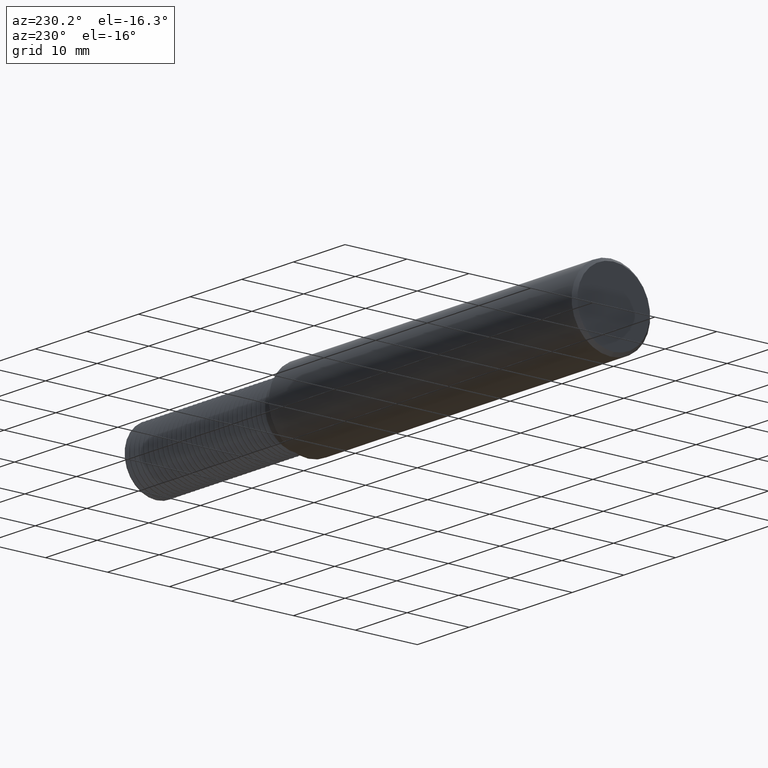
[diagram: clean part render]
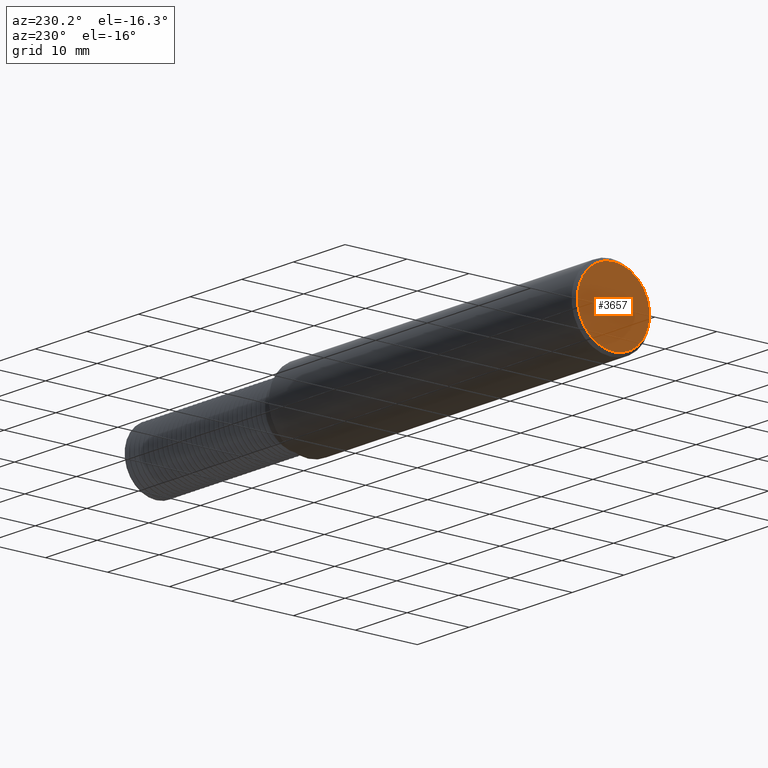
[diagram: same view with one face highlighted and labeled with its STEP entity id]
A machine part, auxiliary view. The second image highlights one B-rep face of the part: STEP entity #3657.
In plain terms, the highlighted planar face has unit normal (1, 0, 0).
Its self-contained STEP definition (entity closure, byte-faithful):
#43 = CARTESIAN_POINT ( 'NONE',  ( 0.000000000000000000, 2.937315347754928730E-17, 0.2298500000000002763 ) ) ;
#396 = VERTEX_POINT ( 'NONE', #2644 ) ;
#983 = CIRCLE ( 'NONE', #5753, 0.2298500000000002763 ) ;
#995 = ORIENTED_EDGE ( 'NONE', *, *, #2078, .T. ) ;
#1081 = DIRECTION ( 'NONE',  ( 0.000000000000000000, 0.000000000000000000, -1.000000000000000000 ) ) ;
#1115 = DIRECTION ( 'NONE',  ( 1.000000000000000000, 0.000000000000000000, 0.000000000000000000 ) ) ;
#1161 = EDGE_LOOP ( 'NONE', ( #1759, #995 ) ) ;
#1525 = VERTEX_POINT ( 'NONE', #43 ) ;
#1759 = ORIENTED_EDGE ( 'NONE', *, *, #5119, .T. ) ;
#2078 = EDGE_CURVE ( 'NONE', #1525, #396, #983, .T. ) ;
#2644 = CARTESIAN_POINT ( 'NONE',  ( 0.000000000000000000, 0.000000000000000000, -0.2298500000000002763 ) ) ;
#3089 = AXIS2_PLACEMENT_3D ( 'NONE', #4971, #3495, #1081 ) ;
#3495 = DIRECTION ( 'NONE',  ( -1.000000000000000000, -0.000000000000000000, -0.000000000000000000 ) ) ;
#3657 = ADVANCED_FACE ( 'NONE', ( #5551 ), #4681, .F. ) ;
#3674 = CARTESIAN_POINT ( 'NONE',  ( 0.000000000000000000, 0.000000000000000000, 0.000000000000000000 ) ) ;
#4150 = DIRECTION ( 'NONE',  ( -1.000000000000000000, -0.000000000000000000, -0.000000000000000000 ) ) ;
#4582 = DIRECTION ( 'NONE',  ( 0.000000000000000000, 0.000000000000000000, -1.000000000000000000 ) ) ;
#4636 = CIRCLE ( 'NONE', #3089, 0.2298500000000002763 ) ;
#4646 = CARTESIAN_POINT ( 'NONE',  ( 0.000000000000000000, 0.000000000000000000, 0.000000000000000000 ) ) ;
#4681 = PLANE ( 'NONE',  #6097 ) ;
#4971 = CARTESIAN_POINT ( 'NONE',  ( 0.000000000000000000, 0.000000000000000000, 0.000000000000000000 ) ) ;
#5041 = DIRECTION ( 'NONE',  ( 0.000000000000000000, 0.000000000000000000, -1.000000000000000000 ) ) ;
#5119 = EDGE_CURVE ( 'NONE', #396, #1525, #4636, .T. ) ;
#5551 = FACE_OUTER_BOUND ( 'NONE', #1161, .T. ) ;
#5753 = AXIS2_PLACEMENT_3D ( 'NONE', #3674, #4150, #4582 ) ;
#6097 = AXIS2_PLACEMENT_3D ( 'NONE', #4646, #1115, #5041 ) ;